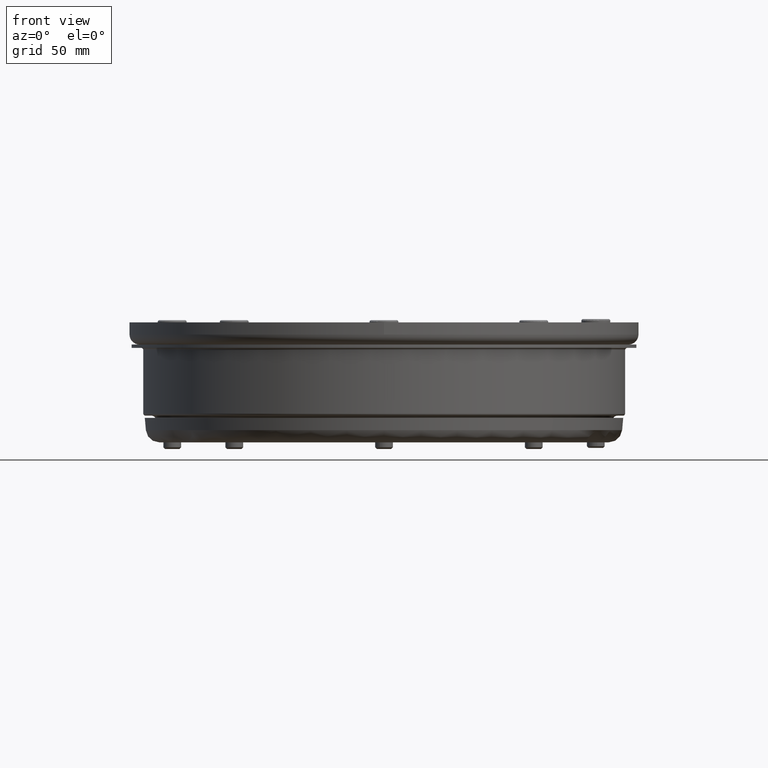
[diagram: clean part render]
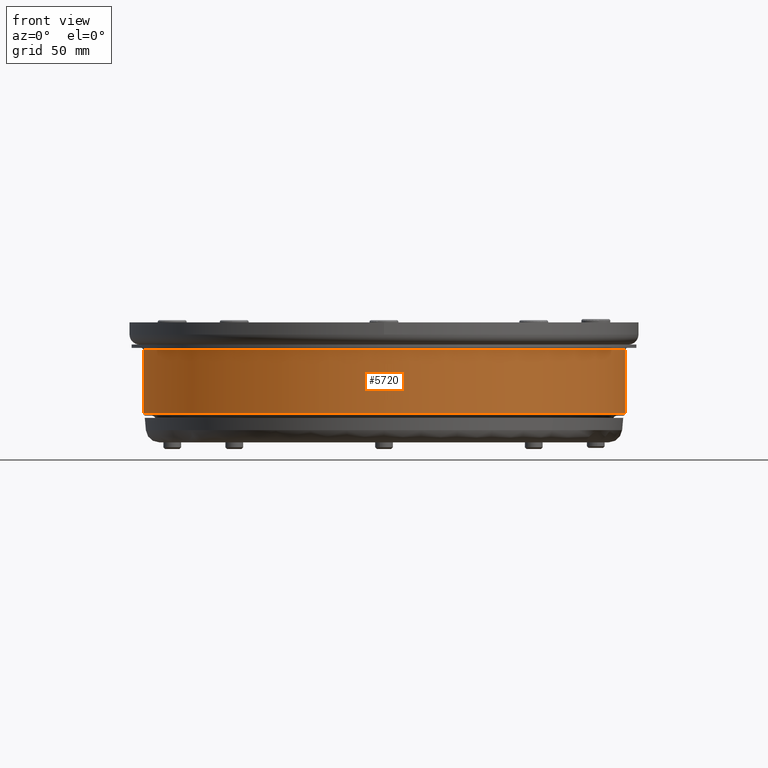
[diagram: same view with one face highlighted and labeled with its STEP entity id]
A machine part, front view. The second image highlights one B-rep face of the part: STEP entity #5720.
In plain terms, the highlighted cylindrical surface (bore or boss wall) has radius 108.5 mm, axis along (0, -0, 1).
Its self-contained STEP definition (entity closure, byte-faithful):
#569=CYLINDRICAL_SURFACE('',#6242,108.5);
#655=FACE_OUTER_BOUND('',#968,.T.);
#968=EDGE_LOOP('',(#4169,#4170,#4171,#4172));
#1376=LINE('',#8343,#1833);
#1833=VECTOR('',#6918,105.3);
#2351=CIRCLE('',#6241,108.5);
#2352=CIRCLE('',#6243,108.5);
#2597=VERTEX_POINT('',#8337);
#2598=VERTEX_POINT('',#8341);
#3216=EDGE_CURVE('',#2597,#2597,#2351,.T.);
#3217=EDGE_CURVE('',#2598,#2598,#2352,.T.);
#3218=EDGE_CURVE('',#2598,#2597,#1376,.T.);
#4169=ORIENTED_EDGE('',*,*,#3217,.F.);
#4170=ORIENTED_EDGE('',*,*,#3218,.T.);
#4171=ORIENTED_EDGE('',*,*,#3216,.F.);
#4172=ORIENTED_EDGE('',*,*,#3218,.F.);
#5720=ADVANCED_FACE('',(#655),#569,.T.);
#6241=AXIS2_PLACEMENT_3D('',#8339,#6912,#6913);
#6242=AXIS2_PLACEMENT_3D('',#8340,#6914,#6915);
#6243=AXIS2_PLACEMENT_3D('',#8342,#6916,#6917);
#6912=DIRECTION('center_axis',(0.,0.,-1.));
#6913=DIRECTION('ref_axis',(-1.,0.,0.));
#6914=DIRECTION('center_axis',(0.,0.,1.));
#6915=DIRECTION('ref_axis',(-1.,0.,0.));
#6916=DIRECTION('center_axis',(0.,-1.83697019872103E-16,1.));
#6917=DIRECTION('ref_axis',(-1.,1.69306009098713E-18,0.));
#6918=DIRECTION('',(0.,0.,-1.));
#8337=CARTESIAN_POINT('',(108.5,-1.27323062584362E-14,8.99999999999999));
#8339=CARTESIAN_POINT('Origin',(-5.55111512312578E-16,5.55111512312578E-16,
8.99999999999999));
#8340=CARTESIAN_POINT('Origin',(-5.55111512312578E-16,5.55111512312578E-16,
0.));
#8341=CARTESIAN_POINT('',(108.5,1.36588322631893E-14,37.5));
#8342=CARTESIAN_POINT('Origin',(-5.55111512312578E-16,5.55111512312578E-16,
37.5));
#8343=CARTESIAN_POINT('',(108.5,1.38425292830614E-14,0.));